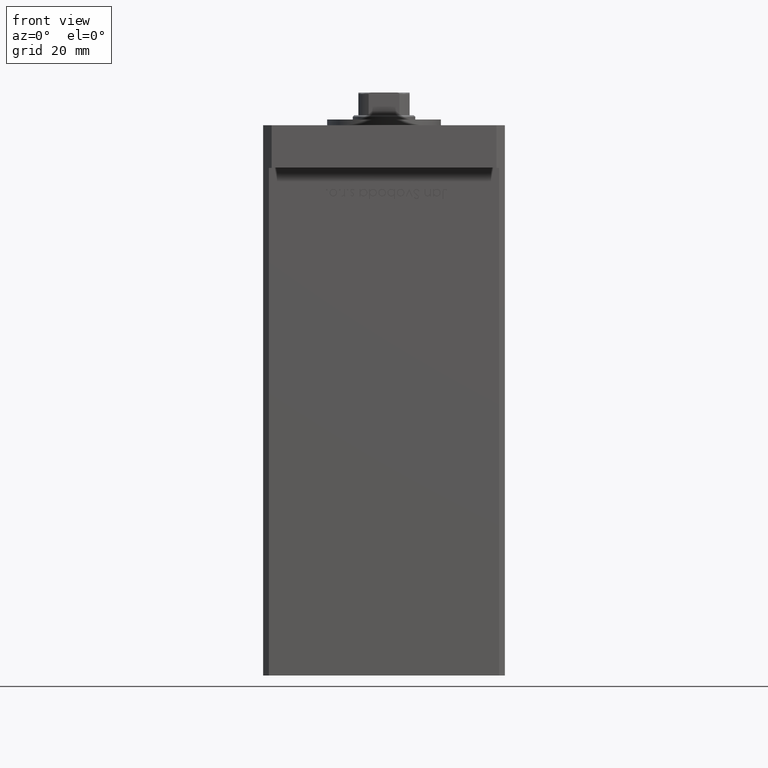
[diagram: clean part render]
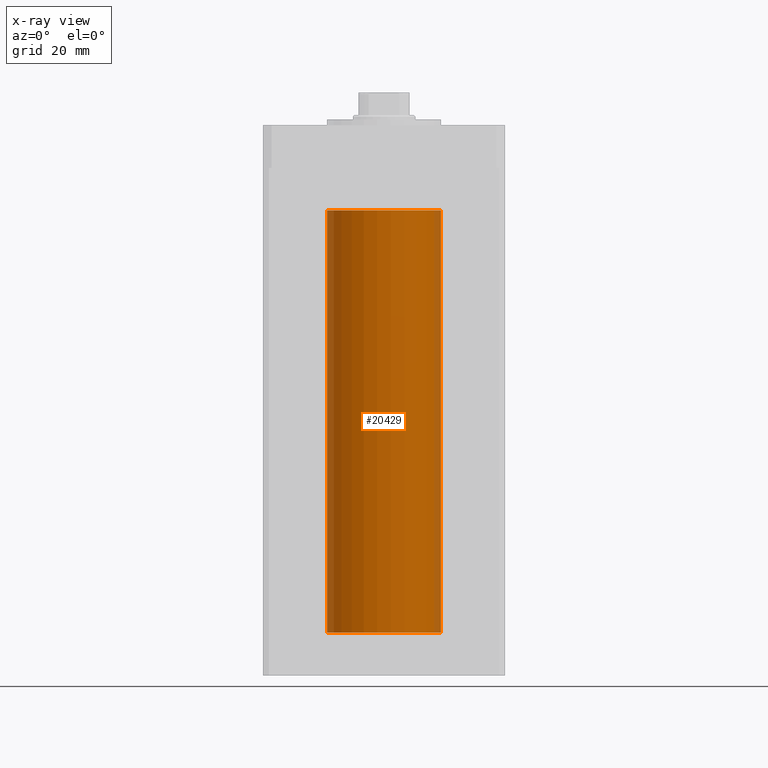
[diagram: x-ray — body ghosted, one internal face saturated and labeled with its STEP entity id]
A machine part, front view, then the same camera in x-ray: the body is ghosted and one INTERNAL B-rep face — a face not visible from any outside direction — is saturated and labeled: STEP entity #20429.
In plain terms, the highlighted cylindrical surface (partial cylindrical patch) has radius 20 mm, axis along (-0, -0, -1).
Its self-contained STEP definition (entity closure, byte-faithful):
#376 = AXIS2_PLACEMENT_3D ( 'NONE', #8536, #25050, #36727 ) ;
#1735 = LINE ( 'NONE', #13680, #32524 ) ;
#3168 = EDGE_CURVE ( 'NONE', #15168, #25432, #28746, .T. ) ;
#7199 = EDGE_CURVE ( 'NONE', #52872, #15168, #14828, .T. ) ;
#7740 = ORIENTED_EDGE ( 'NONE', *, *, #23224, .F. ) ;
#8157 = CARTESIAN_POINT ( 'NONE',  ( 20.00000000000000000, 2.449293598294706513E-15, 148.5000000000000000 ) ) ;
#8536 = CARTESIAN_POINT ( 'NONE',  ( 0.000000000000000000, 0.000000000000000000, 0.000000000000000000 ) ) ;
#10997 = DIRECTION ( 'NONE',  ( 1.000000000000000000, 0.000000000000000000, 0.000000000000000000 ) ) ;
#12639 = CARTESIAN_POINT ( 'NONE',  ( 20.00000000000000000, 2.449293598294706513E-15, 148.5000000000000000 ) ) ;
#13680 = CARTESIAN_POINT ( 'NONE',  ( -20.00000000000000000, 0.000000000000000000, 148.5000000000000000 ) ) ;
#13948 = DIRECTION ( 'NONE',  ( -0.000000000000000000, -0.000000000000000000, -1.000000000000000000 ) ) ;
#14828 = CIRCLE ( 'NONE', #15729, 20.00000000000000000 ) ;
#15168 = VERTEX_POINT ( 'NONE', #12639 ) ;
#15729 = AXIS2_PLACEMENT_3D ( 'NONE', #40270, #26970, #10997 ) ;
#20429 = ADVANCED_FACE ( 'NONE', ( #20636 ), #49397, .F. ) ;
#20464 = CARTESIAN_POINT ( 'NONE',  ( -20.00000000000000000, 0.000000000000000000, 0.000000000000000000 ) ) ;
#20636 = FACE_OUTER_BOUND ( 'NONE', #39729, .T. ) ;
#21999 = AXIS2_PLACEMENT_3D ( 'NONE', #29850, #41801, #37986 ) ;
#22311 = VERTEX_POINT ( 'NONE', #20464 ) ;
#23224 = EDGE_CURVE ( 'NONE', #52872, #22311, #1735, .T. ) ;
#25050 = DIRECTION ( 'NONE',  ( -0.000000000000000000, 0.000000000000000000, 1.000000000000000000 ) ) ;
#25432 = VERTEX_POINT ( 'NONE', #39074 ) ;
#26970 = DIRECTION ( 'NONE',  ( -0.000000000000000000, 0.000000000000000000, 1.000000000000000000 ) ) ;
#28746 = LINE ( 'NONE', #8157, #44174 ) ;
#29850 = CARTESIAN_POINT ( 'NONE',  ( 0.000000000000000000, 0.000000000000000000, 148.5000000000000000 ) ) ;
#31738 = EDGE_CURVE ( 'NONE', #22311, #25432, #36754, .T. ) ;
#32049 = ORIENTED_EDGE ( 'NONE', *, *, #3168, .T. ) ;
#32524 = VECTOR ( 'NONE', #13948, 1000.000000000000000 ) ;
#36727 = DIRECTION ( 'NONE',  ( 1.000000000000000000, 0.000000000000000000, 0.000000000000000000 ) ) ;
#36754 = CIRCLE ( 'NONE', #376, 20.00000000000000000 ) ;
#37986 = DIRECTION ( 'NONE',  ( -1.000000000000000000, 0.000000000000000000, 0.000000000000000000 ) ) ;
#39074 = CARTESIAN_POINT ( 'NONE',  ( 20.00000000000000000, 2.449293598294706513E-15, 0.000000000000000000 ) ) ;
#39273 = ORIENTED_EDGE ( 'NONE', *, *, #31738, .F. ) ;
#39462 = CARTESIAN_POINT ( 'NONE',  ( -20.00000000000000000, 0.000000000000000000, 148.5000000000000000 ) ) ;
#39729 = EDGE_LOOP ( 'NONE', ( #44524, #32049, #39273, #7740 ) ) ;
#40270 = CARTESIAN_POINT ( 'NONE',  ( 0.000000000000000000, 0.000000000000000000, 148.5000000000000000 ) ) ;
#41235 = DIRECTION ( 'NONE',  ( -0.000000000000000000, -0.000000000000000000, -1.000000000000000000 ) ) ;
#41801 = DIRECTION ( 'NONE',  ( -0.000000000000000000, -0.000000000000000000, -1.000000000000000000 ) ) ;
#44174 = VECTOR ( 'NONE', #41235, 1000.000000000000000 ) ;
#44524 = ORIENTED_EDGE ( 'NONE', *, *, #7199, .T. ) ;
#49397 = CYLINDRICAL_SURFACE ( 'NONE', #21999, 20.00000000000000000 ) ;
#52872 = VERTEX_POINT ( 'NONE', #39462 ) ;